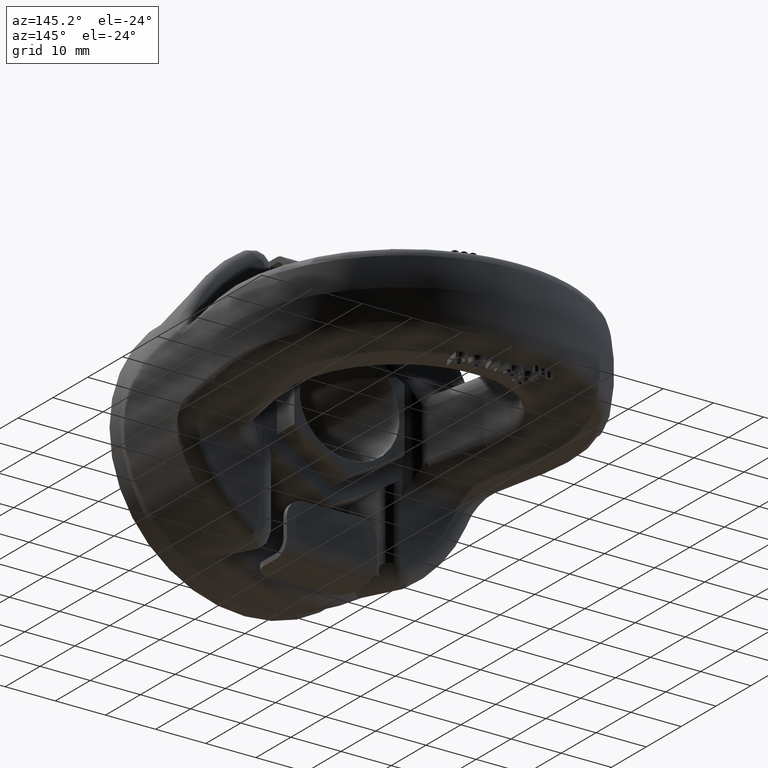
[diagram: clean part render]
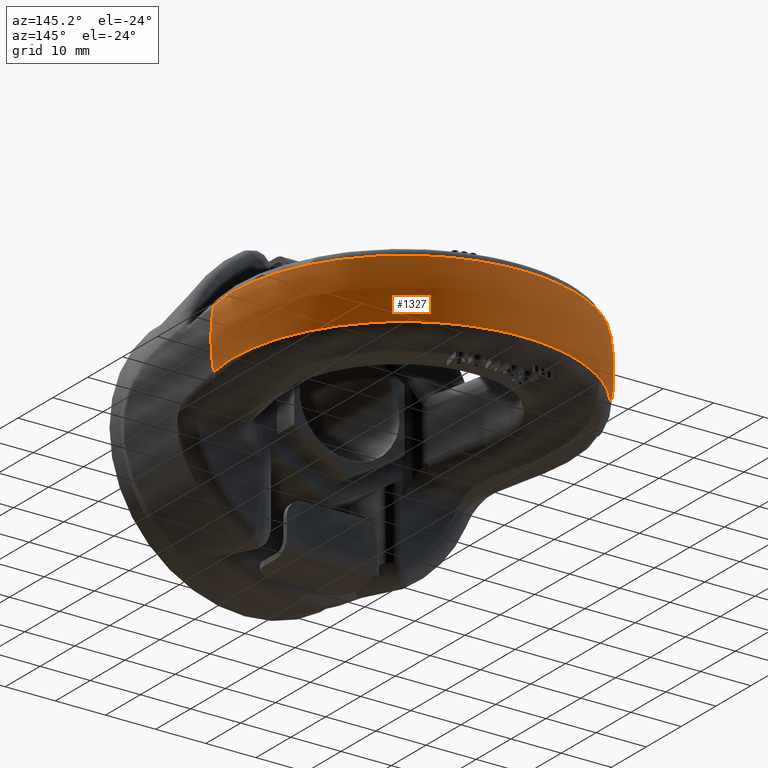
[diagram: same view with one face highlighted and labeled with its STEP entity id]
A machine part, auxiliary view. The second image highlights one B-rep face of the part: STEP entity #1327.
In plain terms, the highlighted spherical surface has radius 34.5 mm.
Its self-contained STEP definition (entity closure, byte-faithful):
#1103=SPHERICAL_SURFACE('',#5122,34.5);
#1107=FACE_OUTER_BOUND('',#1841,.T.);
#1327=ADVANCED_FACE('',(#1107),#1103,.T.);
#1682=CIRCLE('',#5110,33.8863452548138);
#1686=CIRCLE('',#5114,33.8863452548138);
#1691=CIRCLE('',#5120,33.9865974488819);
#1692=CIRCLE('',#5121,33.9865974488819);
#1841=EDGE_LOOP('',(#2785,#2786,#2787,#2788));
#2785=ORIENTED_EDGE('',*,*,#4319,.F.);
#2786=ORIENTED_EDGE('',*,*,#4340,.T.);
#2787=ORIENTED_EDGE('',*,*,#4329,.F.);
#2788=ORIENTED_EDGE('',*,*,#4341,.T.);
#3934=VERTEX_POINT('',#6564);
#3935=VERTEX_POINT('',#6565);
#3944=VERTEX_POINT('',#6617);
#3945=VERTEX_POINT('',#6619);
#4319=EDGE_CURVE('',#3934,#3935,#1682,.T.);
#4329=EDGE_CURVE('',#3944,#3945,#1686,.T.);
#4340=EDGE_CURVE('',#3934,#3945,#1691,.T.);
#4341=EDGE_CURVE('',#3944,#3935,#1692,.T.);
#5110=AXIS2_PLACEMENT_3D('',#6563,#5428,#5429);
#5114=AXIS2_PLACEMENT_3D('',#6618,#5436,#5437);
#5120=AXIS2_PLACEMENT_3D('',#6674,#5448,#5449);
#5121=AXIS2_PLACEMENT_3D('',#6675,#5450,#5451);
#5122=AXIS2_PLACEMENT_3D('',#6676,#5452,#5453);
#5428=DIRECTION('',(-1.59254376065879E-15,-1.,0.));
#5429=DIRECTION('',(1.,-1.63815692763067E-15,0.));
#5436=DIRECTION('',(-1.59254376065879E-15,-1.,0.));
#5437=DIRECTION('',(1.,-1.63815692763067E-15,0.));
#5448=DIRECTION('',(0.,-1.33440267382831E-16,-1.));
#5449=DIRECTION('',(0.,1.,-1.27603497127504E-16));
#5450=DIRECTION('',(-2.34291072916505E-15,-1.33440267382831E-16,1.));
#5451=DIRECTION('',(-2.72003213824597E-31,1.,1.27603497127504E-16));
#5452=DIRECTION('',(-1.53131142070142E-15,-1.,0.));
#5453=DIRECTION('',(1.,-1.60901887626834E-15,0.));
#6563=CARTESIAN_POINT('',(-6.52593960493841E-14,39.0219134559994,0.));
#6564=CARTESIAN_POINT('',(-33.363501028531,39.0219134559994,5.92968750000002));
#6565=CARTESIAN_POINT('',(-33.3635010285309,39.0219134559993,-5.92968750000008));
#6617=CARTESIAN_POINT('',(33.363501028531,39.0219134559994,-5.92968749999994));
#6618=CARTESIAN_POINT('',(-6.52593960493841E-14,39.0219134559994,0.));
#6619=CARTESIAN_POINT('',(33.3635010285309,39.0219134559993,5.92968750000001));
#6674=CARTESIAN_POINT('',(0.,45.5,5.92968750000001));
#6675=CARTESIAN_POINT('',(1.38927284643459E-14,45.5,-5.92968750000001));
#6676=CARTESIAN_POINT('',(0.,45.5,0.));